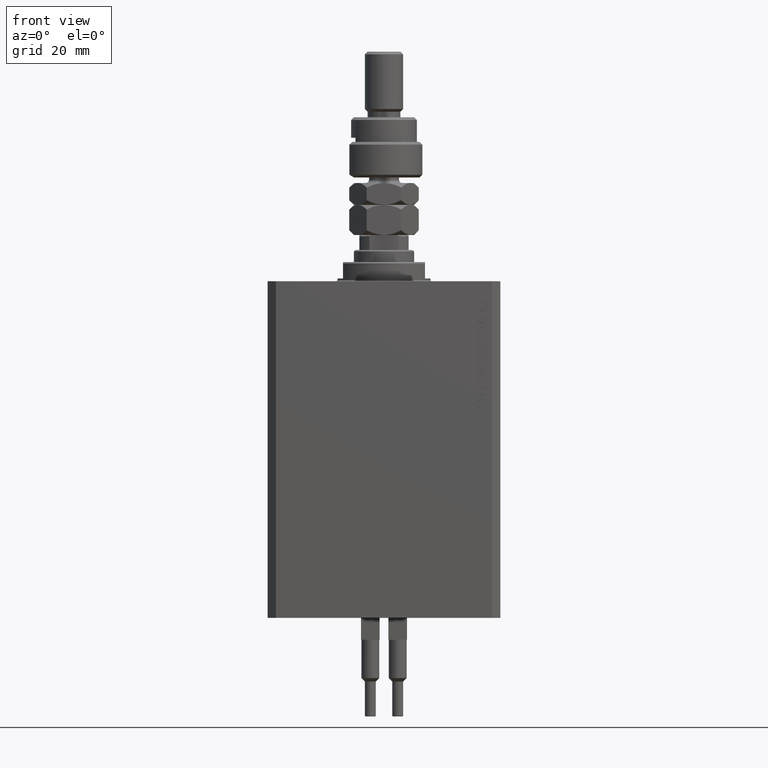
[diagram: clean part render]
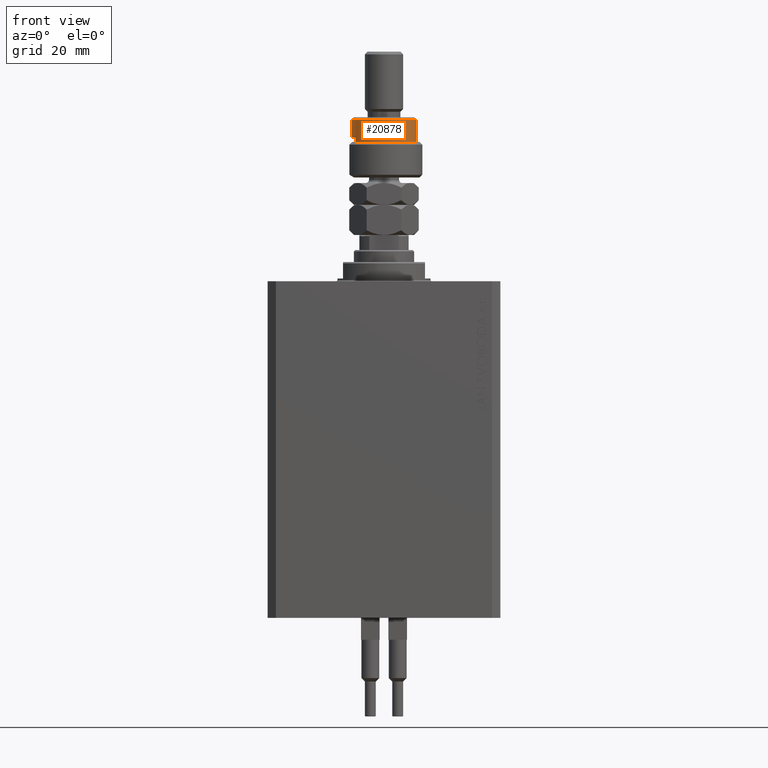
[diagram: same view with one face highlighted and labeled with its STEP entity id]
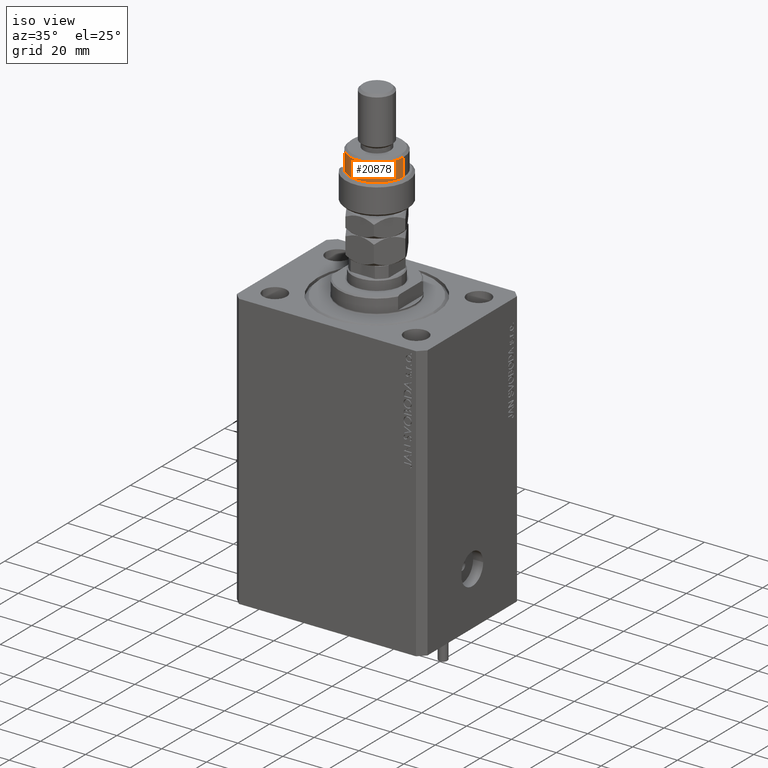
[diagram: same view with one face highlighted and labeled with its STEP entity id]
A machine part, front view. The second image highlights one B-rep face of the part: STEP entity #20878.
A second angle (iso view) of the same face is appended — the face is thin or edge-on in the first view.
In plain terms, the highlighted cylindrical surface (edge-blend (fillet) strip) has radius 12 mm, axis along (-0, -0, -1).
Its self-contained STEP definition (entity closure, byte-faithful):
#421 = EDGE_LOOP ( 'NONE', ( #20374, #11953, #46872, #23558, #20808, #2028 ) ) ;
#539 = AXIS2_PLACEMENT_3D ( 'NONE', #42461, #2736, #39085 ) ;
#1608 = DIRECTION ( 'NONE',  ( 1.000000000000000000, 0.000000000000000000, 0.000000000000000000 ) ) ;
#2028 = ORIENTED_EDGE ( 'NONE', *, *, #19245, .T. ) ;
#2275 = EDGE_CURVE ( 'NONE', #15890, #18267, #19011, .T. ) ;
#2736 = DIRECTION ( 'NONE',  ( 0.000000000000000000, 0.000000000000000000, -1.000000000000000000 ) ) ;
#5265 = DIRECTION ( 'NONE',  ( -0.000000000000000000, -0.000000000000000000, -1.000000000000000000 ) ) ;
#6253 = CARTESIAN_POINT ( 'NONE',  ( -10.39230484541326760, -6.000000000000000000, 13.00000000000000000 ) ) ;
#7285 = CIRCLE ( 'NONE', #30372, 12.00000000000000178 ) ;
#9865 = DIRECTION ( 'NONE',  ( 0.000000000000000000, 0.000000000000000000, 1.000000000000000000 ) ) ;
#11136 = CIRCLE ( 'NONE', #49821, 12.00000000000000178 ) ;
#11953 = ORIENTED_EDGE ( 'NONE', *, *, #45256, .T. ) ;
#12331 = VECTOR ( 'NONE', #28594, 1000.000000000000000 ) ;
#12792 = EDGE_CURVE ( 'NONE', #37524, #16416, #12871, .T. ) ;
#12871 = LINE ( 'NONE', #47411, #12331 ) ;
#15890 = VERTEX_POINT ( 'NONE', #25815 ) ;
#16416 = VERTEX_POINT ( 'NONE', #36278 ) ;
#18267 = VERTEX_POINT ( 'NONE', #30214 ) ;
#19011 = LINE ( 'NONE', #49687, #20191 ) ;
#19245 = EDGE_CURVE ( 'NONE', #26318, #16416, #7285, .T. ) ;
#19516 = EDGE_CURVE ( 'NONE', #43449, #26318, #39465, .T. ) ;
#20191 = VECTOR ( 'NONE', #42485, 1000.000000000000000 ) ;
#20374 = ORIENTED_EDGE ( 'NONE', *, *, #12792, .F. ) ;
#20808 = ORIENTED_EDGE ( 'NONE', *, *, #19516, .T. ) ;
#20878 = ADVANCED_FACE ( 'NONE', ( #41354 ), #37493, .T. ) ;
#23558 = ORIENTED_EDGE ( 'NONE', *, *, #42475, .F. ) ;
#25815 = CARTESIAN_POINT ( 'NONE',  ( -12.00000000000000178, 0.000000000000000000, 20.99999999999999645 ) ) ;
#25893 = VECTOR ( 'NONE', #31489, 1000.000000000000000 ) ;
#26135 = CARTESIAN_POINT ( 'NONE',  ( 0.000000000000000000, 0.000000000000000000, 14.50000000000000000 ) ) ;
#26318 = VERTEX_POINT ( 'NONE', #6253 ) ;
#26875 = CIRCLE ( 'NONE', #539, 12.00000000000000178 ) ;
#28594 = DIRECTION ( 'NONE',  ( -0.000000000000000000, -0.000000000000000000, -1.000000000000000000 ) ) ;
#29210 = CARTESIAN_POINT ( 'NONE',  ( 0.000000000000000000, 0.000000000000000000, 13.00000000000000000 ) ) ;
#29756 = DIRECTION ( 'NONE',  ( 0.000000000000000000, 0.000000000000000000, -1.000000000000000000 ) ) ;
#30214 = CARTESIAN_POINT ( 'NONE',  ( -12.00000000000000178, 0.000000000000000000, 14.50000000000000000 ) ) ;
#30372 = AXIS2_PLACEMENT_3D ( 'NONE', #29210, #9865, #1608 ) ;
#31489 = DIRECTION ( 'NONE',  ( -0.000000000000000000, -0.000000000000000000, -1.000000000000000000 ) ) ;
#36278 = CARTESIAN_POINT ( 'NONE',  ( 12.00000000000000178, 1.469576158976824144E-15, 13.00000000000000000 ) ) ;
#36365 = CARTESIAN_POINT ( 'NONE',  ( -10.39230484541326760, -6.000000000000000000, 22.00000000000000000 ) ) ;
#37493 = CYLINDRICAL_SURFACE ( 'NONE', #38616, 12.00000000000000178 ) ;
#37524 = VERTEX_POINT ( 'NONE', #46756 ) ;
#38616 = AXIS2_PLACEMENT_3D ( 'NONE', #40843, #5265, #48332 ) ;
#39085 = DIRECTION ( 'NONE',  ( 1.000000000000000000, 0.000000000000000000, 0.000000000000000000 ) ) ;
#39465 = LINE ( 'NONE', #36365, #25893 ) ;
#40843 = CARTESIAN_POINT ( 'NONE',  ( 0.000000000000000000, 0.000000000000000000, 22.00000000000000000 ) ) ;
#41354 = FACE_OUTER_BOUND ( 'NONE', #421, .T. ) ;
#42461 = CARTESIAN_POINT ( 'NONE',  ( 0.000000000000000000, 0.000000000000000000, 20.99999999999999645 ) ) ;
#42475 = EDGE_CURVE ( 'NONE', #43449, #18267, #11136, .T. ) ;
#42485 = DIRECTION ( 'NONE',  ( -0.000000000000000000, -0.000000000000000000, -1.000000000000000000 ) ) ;
#43449 = VERTEX_POINT ( 'NONE', #46060 ) ;
#45256 = EDGE_CURVE ( 'NONE', #37524, #15890, #26875, .T. ) ;
#46060 = CARTESIAN_POINT ( 'NONE',  ( -10.39230484541326582, -5.999999999999998224, 14.50000000000000000 ) ) ;
#46756 = CARTESIAN_POINT ( 'NONE',  ( 12.00000000000000178, 1.469576158976824144E-15, 20.99999999999999645 ) ) ;
#46872 = ORIENTED_EDGE ( 'NONE', *, *, #2275, .T. ) ;
#47411 = CARTESIAN_POINT ( 'NONE',  ( 12.00000000000000178, 1.469576158976824144E-15, 22.00000000000000000 ) ) ;
#48332 = DIRECTION ( 'NONE',  ( -1.000000000000000000, 0.000000000000000000, 0.000000000000000000 ) ) ;
#49687 = CARTESIAN_POINT ( 'NONE',  ( -12.00000000000000178, 0.000000000000000000, 22.00000000000000000 ) ) ;
#49821 = AXIS2_PLACEMENT_3D ( 'NONE', #26135, #29756, #49839 ) ;
#49839 = DIRECTION ( 'NONE',  ( -1.000000000000000000, 0.000000000000000000, 0.000000000000000000 ) ) ;